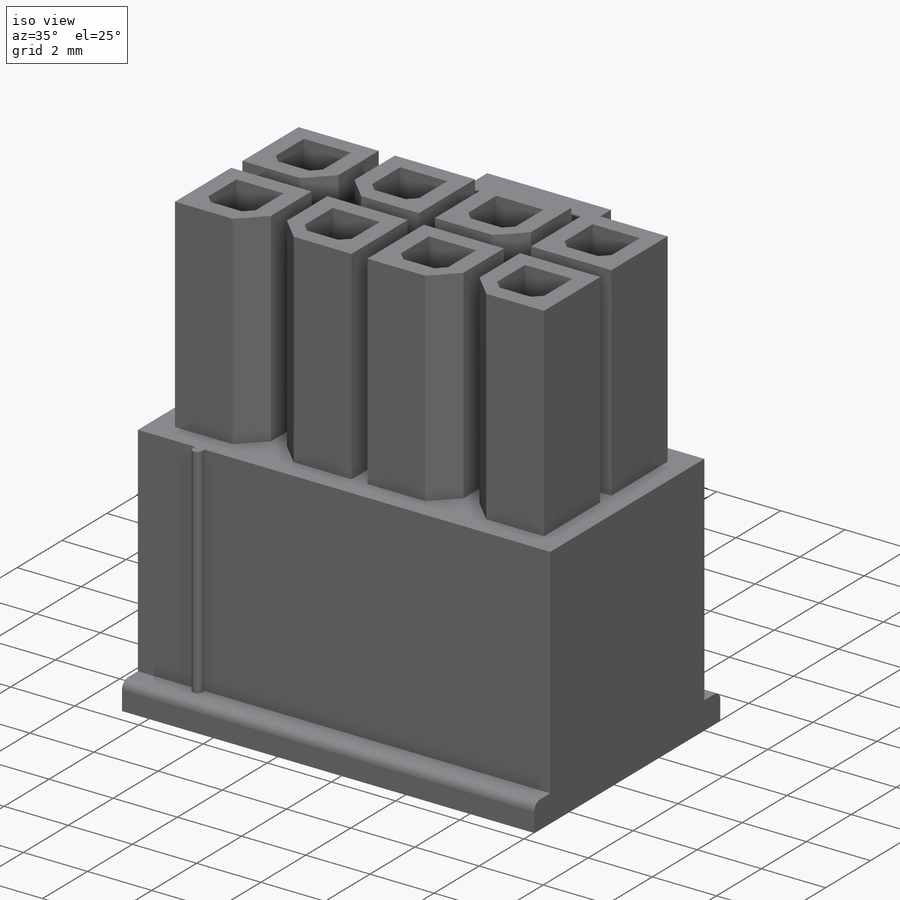
[diagram: iso view]
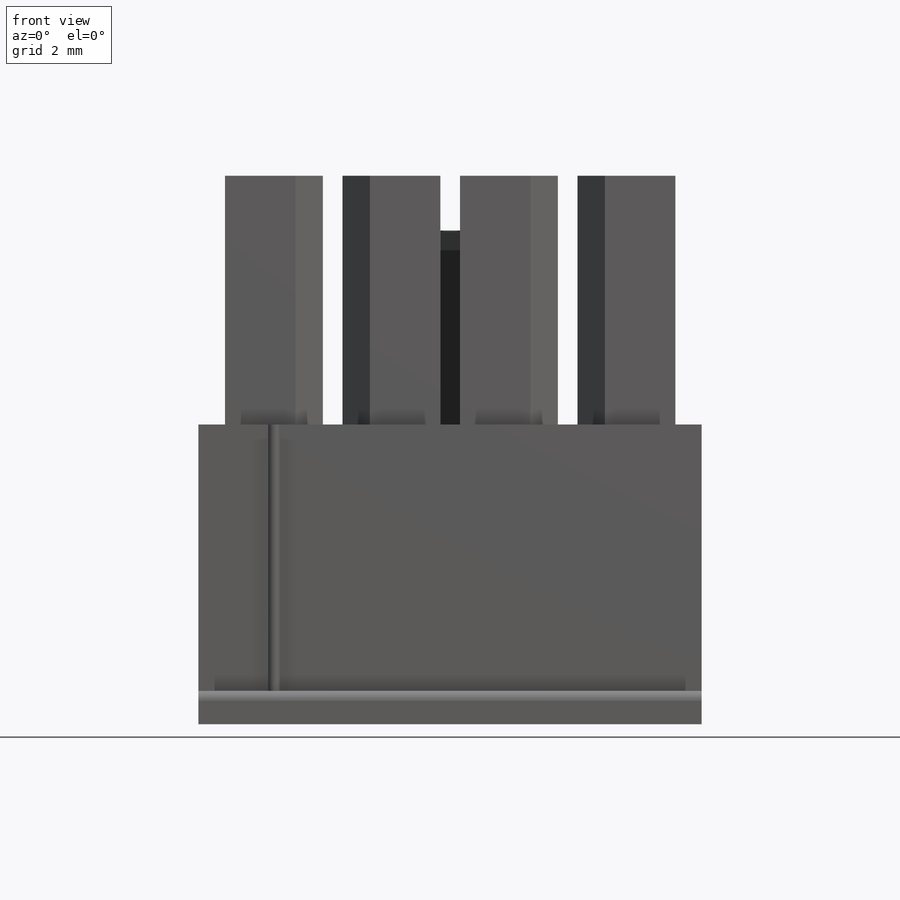
[diagram: front view]
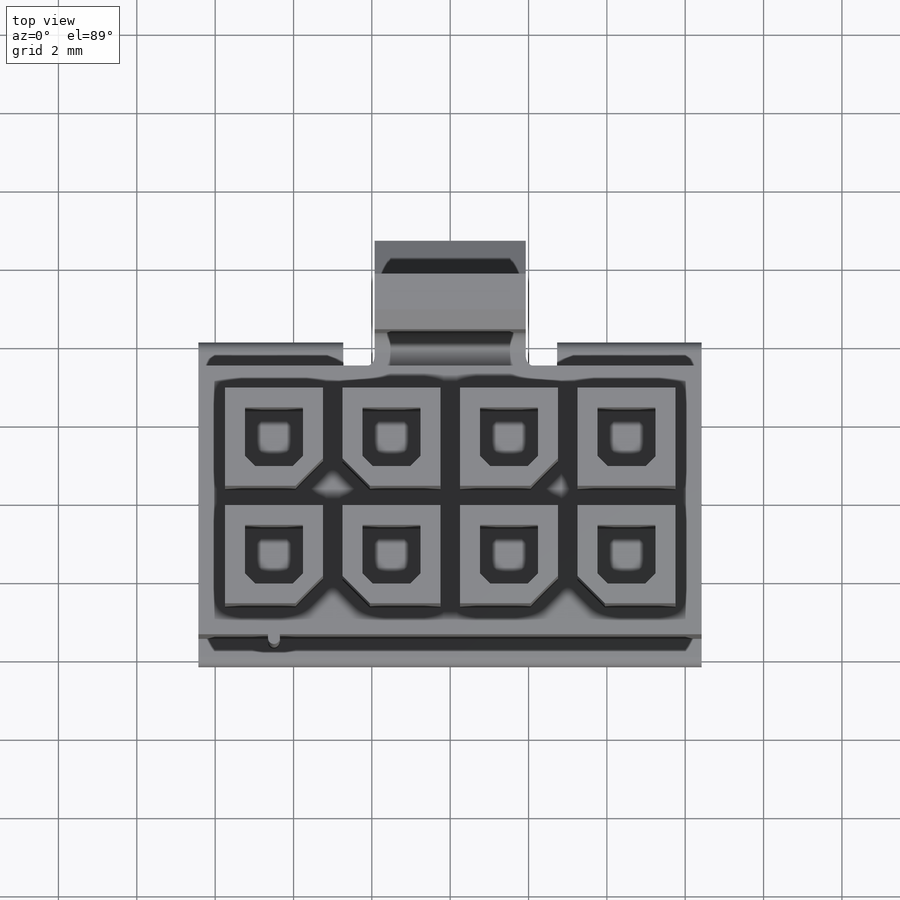
[diagram: top view]
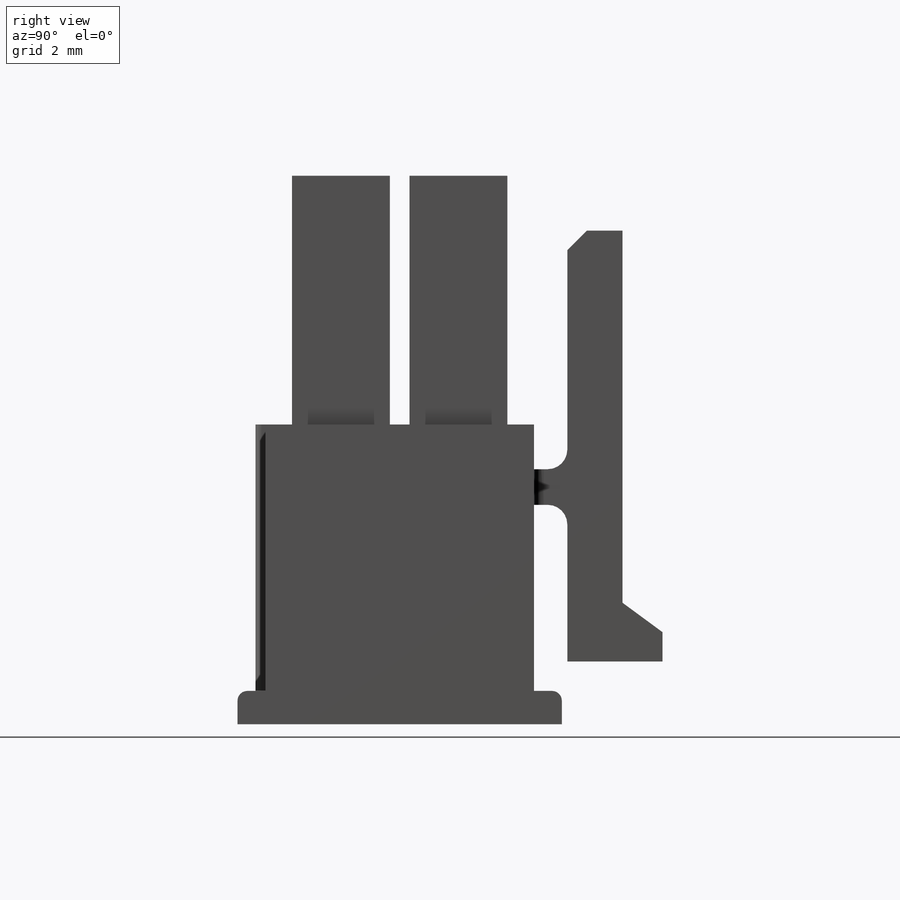
[diagram: right view]
SOLIDWORKS PART (.sldprt)
format: sldprt  version: not decoded by parser v0  size: 628,736 bytes
history: native  units: mm
features: sketch x25, extrude x15, cut_extrude x10, chamfer x3, fillet x2, material x1, plane x1 (+13 scaffold rows collapsed)
feature tree (70):
  scaffold x13  (default folders/planes/origin — collapsed)
  material  "ABS"
  plane  "Plane1"  Offset=4.14mm
  sketch  "Sketch1"
  extrude  "Boss-Extrude1"  Depth=7.57mm
  sketch  "Sketch2"
  extrude  "Boss-Extrude2"  Depth=3.28mm
  sketch  "Sketch3"
  extrude  "Boss-Extrude3"  Depth=6.09mm
  sketch  "Sketch4"
  extrude  "Boss-Extrude4"  Depth=4mm
  sketch  "Sketch5"
  cut_extrude  "Cut-Extrude1"  Depth=3.86mm
  sketch  "Sketch6"
  cut_extrude  "Cut-Extrude2"  Depth=12.85mm
  sketch  "Sketch7"
  extrude  "Boss-Extrude5"  Depth=6.8mm
  sketch  "Sketch8"
  extrude  "Boss-Extrude6"  Depth=0.71mm
  sketch  "Sketch9"
  extrude  "Boss-Extrude7"  Depth=0.71mm
  sketch  "Sketch10"
  extrude  "Boss-Extrude8"  Depth=6.35mm
  sketch  "Sketch11"
  cut_extrude  "Cut-Extrude3"  Depth=5.8mm
  sketch  "Sketch12"
  extrude  "Boss-Extrude9"  Depth=6.35mm
  sketch  "Sketch13"
  cut_extrude  "Cut-Extrude4"  Depth=5.8mm
  sketch  "Sketch14"
  extrude  "Boss-Extrude10"  Depth=6.35mm
  sketch  "Sketch15"
  cut_extrude  "Cut-Extrude5"  Depth=5.8mm
  sketch  "Sketch16"
  extrude  "Boss-Extrude11"  Depth=6.35mm
  sketch  "Sketch17"
  cut_extrude  "Cut-Extrude6"  Depth=5.8mm
  sketch  "Sketch18"
  extrude  "Boss-Extrude12"  Depth=6.35mm
  sketch  "Sketch19"
  cut_extrude  "Cut-Extrude7"  Depth=5.8mm
  sketch  "Sketch20"
  extrude  "Boss-Extrude13"  Depth=6.35mm
  sketch  "Sketch21"
  cut_extrude  "Cut-Extrude8"  Depth=5.8mm
  sketch  "Sketch22"
  extrude  "Boss-Extrude14"  Depth=6.35mm
  sketch  "Sketch23"
  cut_extrude  "Cut-Extrude9"  Depth=5.8mm
  sketch  "Sketch24"
  extrude  "Boss-Extrude15"  Depth=6.35mm
  sketch  "Sketch25"
  cut_extrude  "Cut-Extrude10"  Depth=5.8mm
  chamfer  "Chamfer1"  Distance=0.25mm Angle=45deg
  chamfer  "Chamfer2"  Distance=0.7mm Angle=45deg
  chamfer  "Chamfer3"  Distance=0.5mm Angle=45deg
  fillet  "Fillet1"  Radius=0.25mm
  fillet  "Fillet2"  Radius=0.5mm
decode coverage: 30 of 55 modeling features carry decoded parameters
note: suppression state not decoded; provenance and decode notes live in map.json
